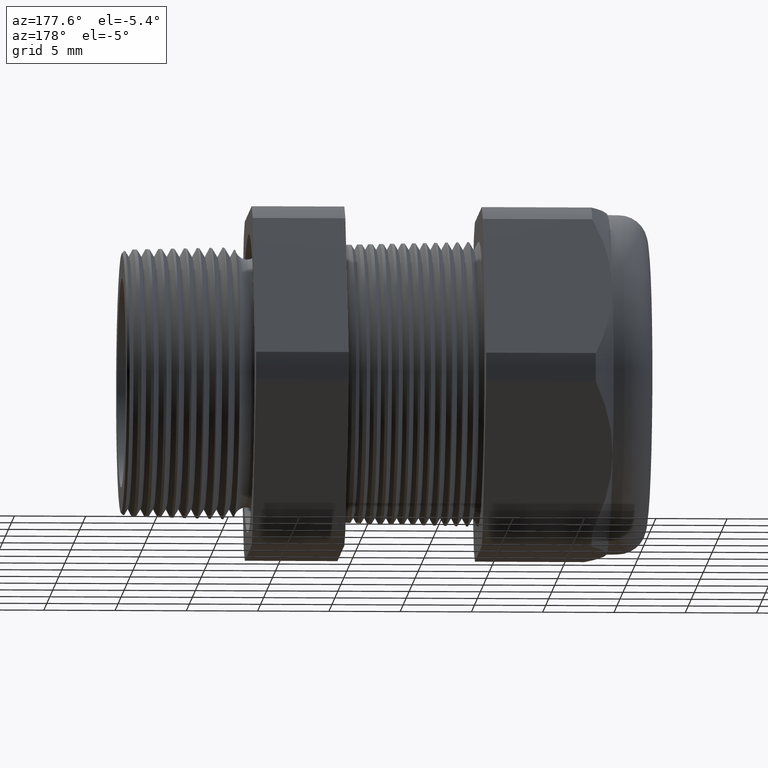
[diagram: clean part render]
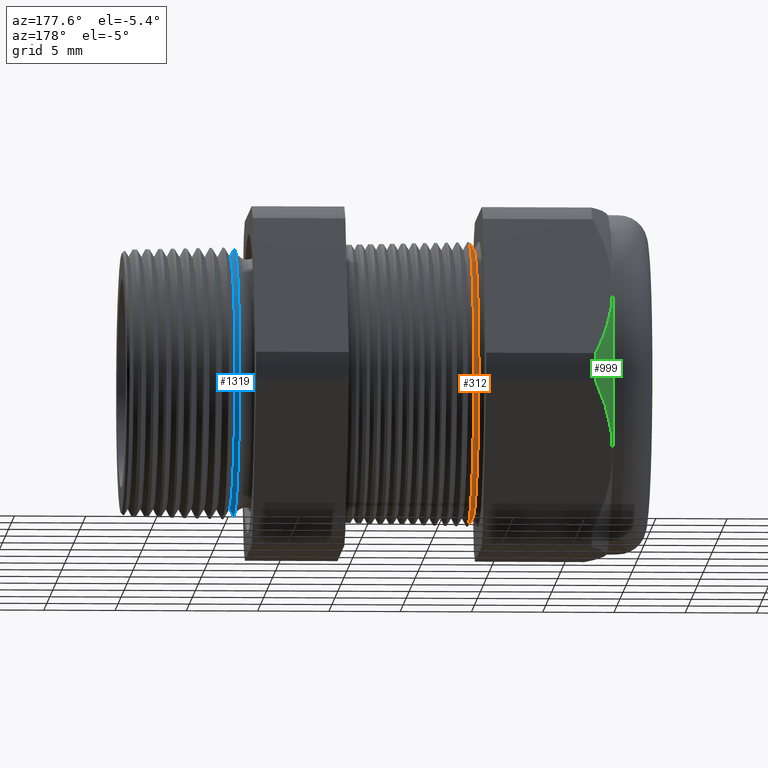
[diagram: same view with three faces highlighted in distinct colors, each labeled with its STEP entity id]
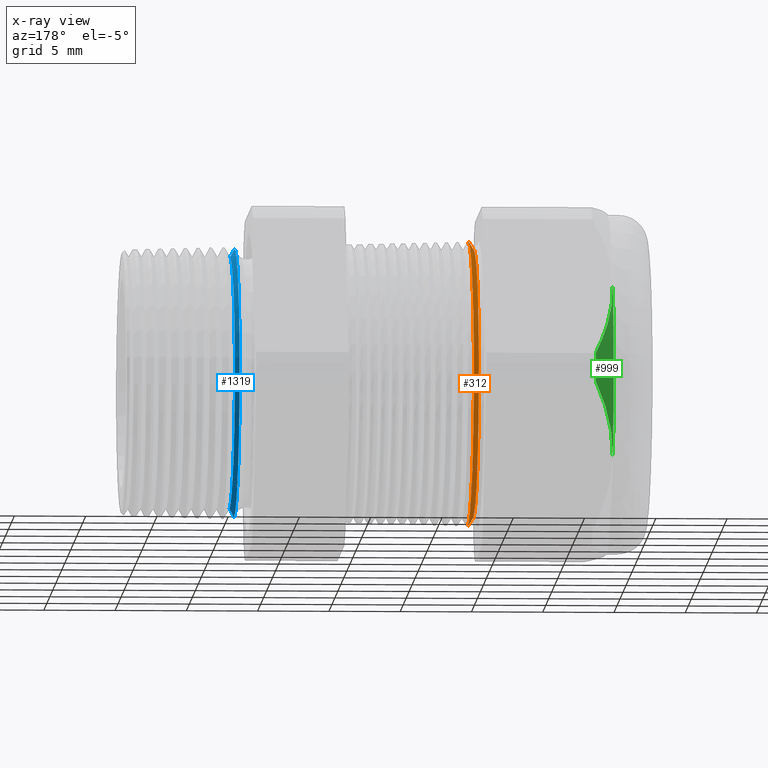
[diagram: x-ray of the same camera — body ghosted, the three highlighted faces saturated]
A machine part, auxiliary view with three faces highlighted in distinct colors.
The next image is the same camera in x-ray (body ghosted, the three faces saturated) — at least one of them is partly hidden behind the body in this view.
Their STEP definitions:

[orange] entity #312 — the highlighted conical surface has half-angle 58.5 deg.
#68 = ORIENTED_EDGE ( 'NONE', *, *, #292, .F. ) ;
#292 = EDGE_CURVE ( 'NONE', #321, #320, #2440, .T. ) ;
#293 = ORIENTED_EDGE ( 'NONE', *, *, #294, .F. ) ;
#294 = EDGE_CURVE ( 'NONE', #316, #321, #2435, .T. ) ;
#312 = ADVANCED_FACE ( 'NONE', ( #2461 ), #2459, .T. ) ;
#313 = EDGE_LOOP ( 'NONE', ( #314, #318, #68, #293 ) ) ;
#314 = ORIENTED_EDGE ( 'NONE', *, *, #315, .T. ) ;
#315 = EDGE_CURVE ( 'NONE', #316, #317, #2454, .T. ) ;
#316 = VERTEX_POINT ( 'NONE', #2450 ) ;
#317 = VERTEX_POINT ( 'NONE', #2449 ) ;
#318 = ORIENTED_EDGE ( 'NONE', *, *, #319, .T. ) ;
#319 = EDGE_CURVE ( 'NONE', #317, #320, #2448, .T. ) ;
#320 = VERTEX_POINT ( 'NONE', #2444 ) ;
#321 = VERTEX_POINT ( 'NONE', #2443 ) ;
#2432 = DIRECTION ( 'NONE',  ( 0.5224985647159373600, 0.0000000000000000000, -0.8526401643540992800 ) ) ;
#2433 = VECTOR ( 'NONE', #2432, 39.37007874015748100 ) ;
#2434 = CARTESIAN_POINT ( 'NONE',  ( -0.9316586839320377700, 0.0000000000000000000, -0.3696307351718083900 ) ) ;
#2435 = LINE ( 'NONE', #2434, #2433 ) ;
#2436 = DIRECTION ( 'NONE',  ( 0.0000000000000000000, 0.0000000000000000000, -1.000000000000000000 ) ) ;
#2437 = DIRECTION ( 'NONE',  ( 1.000000000000000000, 0.0000000000000000000, 0.0000000000000000000 ) ) ;
#2438 = CARTESIAN_POINT ( 'NONE',  ( -0.9165754495825407800, 0.0000000000000000000, 0.0000000000000000000 ) ) ;
#2439 = AXIS2_PLACEMENT_3D ( 'NONE', #2438, #2437, #2436 ) ;
#2440 = CIRCLE ( 'NONE', #2439, 0.3942443365923946100 ) ;
#2443 = CARTESIAN_POINT ( 'NONE',  ( -0.9165754495825407800, 4.828100648898476700E-017, -0.3942443365923945500 ) ) ;
#2444 = CARTESIAN_POINT ( 'NONE',  ( -0.9165754495825407800, 0.0000000000000000000, 0.3942443365923945500 ) ) ;
#2445 = DIRECTION ( 'NONE',  ( 0.5224985647159373600, 1.044183048100720900E-016, 0.8526401643540992800 ) ) ;
#2446 = VECTOR ( 'NONE', #2445, 39.37007874015748100 ) ;
#2447 = CARTESIAN_POINT ( 'NONE',  ( -0.9316586839320377700, 4.526670966946381200E-017, 0.3696307351718083900 ) ) ;
#2448 = LINE ( 'NONE', #2447, #2446 ) ;
#2449 = CARTESIAN_POINT ( 'NONE',  ( -0.9316586839320377700, 0.0000000000000000000, 0.3696307351718083900 ) ) ;
#2450 = CARTESIAN_POINT ( 'NONE',  ( -0.9316586839320377700, 4.682012911789212800E-017, -0.3696307351718083900 ) ) ;
#2451 = DIRECTION ( 'NONE',  ( 0.0000000000000000000, 0.0000000000000000000, -1.000000000000000000 ) ) ;
#2452 = DIRECTION ( 'NONE',  ( 1.000000000000000000, 0.0000000000000000000, 0.0000000000000000000 ) ) ;
#2453 = AXIS2_PLACEMENT_3D ( 'NONE', #2460, #2452, #2451 ) ;
#2454 = CIRCLE ( 'NONE', #2453, 0.3696307351718083900 ) ;
#2455 = DIRECTION ( 'NONE',  ( 0.0000000000000000000, 0.0000000000000000000, -1.000000000000000000 ) ) ;
#2456 = DIRECTION ( 'NONE',  ( 1.000000000000000000, 0.0000000000000000000, 0.0000000000000000000 ) ) ;
#2457 = CARTESIAN_POINT ( 'NONE',  ( -0.9316586839320377700, 0.0000000000000000000, 0.0000000000000000000 ) ) ;
#2458 = AXIS2_PLACEMENT_3D ( 'NONE', #2457, #2456, #2455 ) ;
#2459 = CONICAL_SURFACE ( 'NONE', #2458, 0.3696307351718083900, 1.021017612416696300 ) ;
#2460 = CARTESIAN_POINT ( 'NONE',  ( -0.9316586839320377700, 0.0000000000000000000, 0.0000000000000000000 ) ) ;
#2461 = FACE_OUTER_BOUND ( 'NONE', #313, .T. ) ;

[blue] entity #1319 — the highlighted conical surface has half-angle 61.5 deg.
#1314 = ORIENTED_EDGE ( 'NONE', *, *, #1789, .T. ) ;
#1315 = ORIENTED_EDGE ( 'NONE', *, *, #1372, .T. ) ;
#1316 = ORIENTED_EDGE ( 'NONE', *, *, #1333, .F. ) ;
#1318 = EDGE_LOOP ( 'NONE', ( #1316, #1315, #1314, #1373 ) ) ;
#1319 = ADVANCED_FACE ( 'NONE', ( #4169 ), #4168, .T. ) ;
#1324 = VERTEX_POINT ( 'NONE', #4153 ) ;
#1326 = VERTEX_POINT ( 'NONE', #4151 ) ;
#1333 = EDGE_CURVE ( 'NONE', #1326, #1324, #4204, .T. ) ;
#1372 = EDGE_CURVE ( 'NONE', #1326, #1774, #4266, .T. ) ;
#1373 = ORIENTED_EDGE ( 'NONE', *, *, #1382, .F. ) ;
#1382 = EDGE_CURVE ( 'NONE', #1324, #1781, #4250, .T. ) ;
#1774 = VERTEX_POINT ( 'NONE', #4996 ) ;
#1781 = VERTEX_POINT ( 'NONE', #4983 ) ;
#1789 = EDGE_CURVE ( 'NONE', #1774, #1781, #5044, .T. ) ;
#4151 = CARTESIAN_POINT ( 'NONE',  ( -0.2584707356790751400, 4.400326920631671700E-017, -0.3479174816500062400 ) ) ;
#4153 = CARTESIAN_POINT ( 'NONE',  ( -0.2584707356790751400, 0.0000000000000000000, 0.3479174816500062400 ) ) ;
#4163 = DIRECTION ( 'NONE',  ( 0.0000000000000000000, 0.0000000000000000000, 1.000000000000000000 ) ) ;
#4164 = DIRECTION ( 'NONE',  ( -1.000000000000000000, 0.0000000000000000000, 0.0000000000000000000 ) ) ;
#4165 = CARTESIAN_POINT ( 'NONE',  ( -0.2749999999999999700, 0.0000000000000000000, 0.0000000000000000000 ) ) ;
#4166 = AXIS2_PLACEMENT_3D ( 'NONE', #4165, #4164, #4163 ) ;
#4168 = CONICAL_SURFACE ( 'NONE', #4166, 0.3783605994438362700, 1.073377489976500100 ) ;
#4169 = FACE_OUTER_BOUND ( 'NONE', #1318, .T. ) ;
#4200 = DIRECTION ( 'NONE',  ( 0.0000000000000000000, 0.0000000000000000000, -1.000000000000000000 ) ) ;
#4201 = DIRECTION ( 'NONE',  ( 1.000000000000000000, 0.0000000000000000000, 0.0000000000000000000 ) ) ;
#4202 = CARTESIAN_POINT ( 'NONE',  ( -0.2584707356790751400, 0.0000000000000000000, 0.0000000000000000000 ) ) ;
#4203 = AXIS2_PLACEMENT_3D ( 'NONE', #4202, #4201, #4200 ) ;
#4204 = CIRCLE ( 'NONE', #4203, 0.3479174816500062400 ) ;
#4249 = CARTESIAN_POINT ( 'NONE',  ( -0.2749999999999999700, 0.0000000000000000000, 0.3783605994438362700 ) ) ;
#4250 = LINE ( 'NONE', #4249, #4310 ) ;
#4263 = DIRECTION ( 'NONE',  ( -0.4771587602596195100, 1.076240564057387400E-016, -0.8788171126619593900 ) ) ;
#4264 = VECTOR ( 'NONE', #4263, 39.37007874015748100 ) ;
#4265 = CARTESIAN_POINT ( 'NONE',  ( -0.2749999999999999700, 4.633580970323678400E-017, -0.3783605994438362700 ) ) ;
#4266 = LINE ( 'NONE', #4265, #4264 ) ;
#4309 = DIRECTION ( 'NONE',  ( -0.4771587602596195100, 0.0000000000000000000, 0.8788171126619593900 ) ) ;
#4310 = VECTOR ( 'NONE', #4309, 39.37007874015748100 ) ;
#4983 = CARTESIAN_POINT ( 'NONE',  ( -0.2708463023710462300, 0.0000000000000000000, 0.3707104400814432700 ) ) ;
#4996 = CARTESIAN_POINT ( 'NONE',  ( -0.2708463023710462300, 4.539893538562461000E-017, -0.3707104400814432700 ) ) ;
#5040 = DIRECTION ( 'NONE',  ( 0.0000000000000000000, 0.0000000000000000000, 1.000000000000000000 ) ) ;
#5041 = DIRECTION ( 'NONE',  ( 1.000000000000000000, 0.0000000000000000000, 0.0000000000000000000 ) ) ;
#5042 = CARTESIAN_POINT ( 'NONE',  ( -0.2708463023710462300, 0.0000000000000000000, 0.0000000000000000000 ) ) ;
#5043 = AXIS2_PLACEMENT_3D ( 'NONE', #5042, #5041, #5040 ) ;
#5044 = CIRCLE ( 'NONE', #5043, 0.3707104400814433300 ) ;

[green] entity #999 — the highlighted conical surface has half-angle 45 deg.
#81 = VERTEX_POINT ( 'NONE', #2022 ) ;
#574 = EDGE_CURVE ( 'NONE', #5359, #575, #2963, .T. ) ;
#575 = VERTEX_POINT ( 'NONE', #2962 ) ;
#689 = EDGE_CURVE ( 'NONE', #715, #81, #3244, .T. ) ;
#699 = EDGE_CURVE ( 'NONE', #575, #715, #3274, .T. ) ;
#715 = VERTEX_POINT ( 'NONE', #3302 ) ;
#999 = ADVANCED_FACE ( 'NONE', ( #3743 ), #3742, .T. ) ;
#1000 = EDGE_LOOP ( 'NONE', ( #1001, #1002, #1003, #1004 ) ) ;
#1001 = ORIENTED_EDGE ( 'NONE', *, *, #5355, .T. ) ;
#1002 = ORIENTED_EDGE ( 'NONE', *, *, #689, .F. ) ;
#1003 = ORIENTED_EDGE ( 'NONE', *, *, #699, .F. ) ;
#1004 = ORIENTED_EDGE ( 'NONE', *, *, #574, .F. ) ;
#2022 = CARTESIAN_POINT ( 'NONE',  ( -1.299763779527559200, 0.4070319397786861800, 0.2350000000000001000 ) ) ;
#2948 = CARTESIAN_POINT ( 'NONE',  ( -1.276822062588142100, 0.4835762490957484200, -0.1024213672325805200 ) ) ;
#2949 = CARTESIAN_POINT ( 'NONE',  ( -1.294818111347315200, 0.4458197490082083700, -0.1678175437001784800 ) ) ;
#2950 = CARTESIAN_POINT ( 'NONE',  ( -1.299763779527558500, 0.4266212606411439200, -0.2010703009804540900 ) ) ;
#2951 = CARTESIAN_POINT ( 'NONE',  ( -1.299763779527559200, 0.4070319397786864000, -0.2350000000000000100 ) ) ;
#2962 = CARTESIAN_POINT ( 'NONE',  ( -1.248063779527559100, 0.5202473208008777700, -0.03890520787129497100 ) ) ;
#2963 = B_SPLINE_CURVE_WITH_KNOTS ( 'NONE', 3,
 ( #2951, #2950, #2949, #2948, #3009, #3008 ),
 .UNSPECIFIED., .F., .F.,
 ( 4, 2, 4 ),
 ( 0.005903107334592311600, 0.008852512982428775400, 0.01180191863026523900 ),
 .UNSPECIFIED. ) ;
#3008 = CARTESIAN_POINT ( 'NONE',  ( -1.248063779527559100, 0.5202473208008777700, -0.03890520787129497100 ) ) ;
#3009 = CARTESIAN_POINT ( 'NONE',  ( -1.263717189021966500, 0.5022144712456754200, -0.07013901950615127100 ) ) ;
#3233 = CARTESIAN_POINT ( 'NONE',  ( -1.299763779527559200, 0.4070319397786861800, 0.2350000000000001000 ) ) ;
#3234 = CARTESIAN_POINT ( 'NONE',  ( -1.299763779527559400, 0.4119326305003307400, 0.2265117546779305300 ) ) ;
#3235 = CARTESIAN_POINT ( 'NONE',  ( -1.299453644849873900, 0.4168781440523186600, 0.2179458739363668000 ) ) ;
#3236 = CARTESIAN_POINT ( 'NONE',  ( -1.298221849142434700, 0.4267040029977488500, 0.2009269870148766600 ) ) ;
#3237 = CARTESIAN_POINT ( 'NONE',  ( -1.297304216752655800, 0.4315793332085025600, 0.1924826673861759200 ) ) ;
#3238 = CARTESIAN_POINT ( 'NONE',  ( -1.293700751481475100, 0.4460993342073095700, 0.1673332879302911700 ) ) ;
#3239 = CARTESIAN_POINT ( 'NONE',  ( -1.290164085422761400, 0.4556379823307484300, 0.1508118647449735200 ) ) ;
#3240 = CARTESIAN_POINT ( 'NONE',  ( -1.276620445010038900, 0.4838883643614173000, 0.1018807677346242600 ) ) ;
#3241 = CARTESIAN_POINT ( 'NONE',  ( -1.263697825203295300, 0.5022367785154768800, 0.07010038218147686400 ) ) ;
#3242 = CARTESIAN_POINT ( 'NONE',  ( -1.248063779527559100, 0.5202473208008776600, 0.03890520787129531800 ) ) ;
#3244 = B_SPLINE_CURVE_WITH_KNOTS ( 'NONE', 3,
 ( #3242, #3241, #3240, #3239, #3238, #3237, #3236, #3235, #3234, #3233 ),
 .UNSPECIFIED., .F., .F.,
 ( 4, 2, 2, 2, 4 ),
 ( 2.483251536681752600E-007, 0.002951677829872991300, 0.004427392582232650600, 0.005165249958412478900, 0.005903107334592306400 ),
 .UNSPECIFIED. ) ;
#3271 = DIRECTION ( 'NONE',  ( 0.0000000000000000000, 0.0000000000000000000, -1.000000000000000000 ) ) ;
#3272 = DIRECTION ( 'NONE',  ( 1.000000000000000000, 0.0000000000000000000, 0.0000000000000000000 ) ) ;
#3273 = AXIS2_PLACEMENT_3D ( 'NONE', #3279, #3272, #3271 ) ;
#3274 = CIRCLE ( 'NONE', #3273, 0.5217000000000000500 ) ;
#3279 = CARTESIAN_POINT ( 'NONE',  ( -1.248063779527559100, 0.0000000000000000000, 0.0000000000000000000 ) ) ;
#3302 = CARTESIAN_POINT ( 'NONE',  ( -1.248063779527559100, 0.5202473208008776600, 0.03890520787129531800 ) ) ;
#3737 = DIRECTION ( 'NONE',  ( 0.0000000000000000000, 0.0000000000000000000, 1.000000000000000000 ) ) ;
#3738 = DIRECTION ( 'NONE',  ( 1.000000000000000000, 0.0000000000000000000, 0.0000000000000000000 ) ) ;
#3739 = CARTESIAN_POINT ( 'NONE',  ( -1.299763779527559200, 0.0000000000000000000, 0.0000000000000000000 ) ) ;
#3740 = AXIS2_PLACEMENT_3D ( 'NONE', #3739, #3738, #3737 ) ;
#3742 = CONICAL_SURFACE ( 'NONE', #3740, 0.4699999999999997500, 0.7853981633974501700 ) ;
#3743 = FACE_OUTER_BOUND ( 'NONE', #1000, .T. ) ;
#5210 = CARTESIAN_POINT ( 'NONE',  ( -1.299763779527559200, 0.4070319397786864000, -0.2350000000000000100 ) ) ;
#5217 = DIRECTION ( 'NONE',  ( 0.0000000000000000000, 0.0000000000000000000, -1.000000000000000000 ) ) ;
#5218 = DIRECTION ( 'NONE',  ( 1.000000000000000000, 0.0000000000000000000, 0.0000000000000000000 ) ) ;
#5219 = CARTESIAN_POINT ( 'NONE',  ( -1.299763779527559200, 0.0000000000000000000, 0.0000000000000000000 ) ) ;
#5220 = AXIS2_PLACEMENT_3D ( 'NONE', #5219, #5218, #5217 ) ;
#5221 = CIRCLE ( 'NONE', #5220, 0.4699999999999999200 ) ;
#5355 = EDGE_CURVE ( 'NONE', #5359, #81, #5221, .T. ) ;
#5359 = VERTEX_POINT ( 'NONE', #5210 ) ;